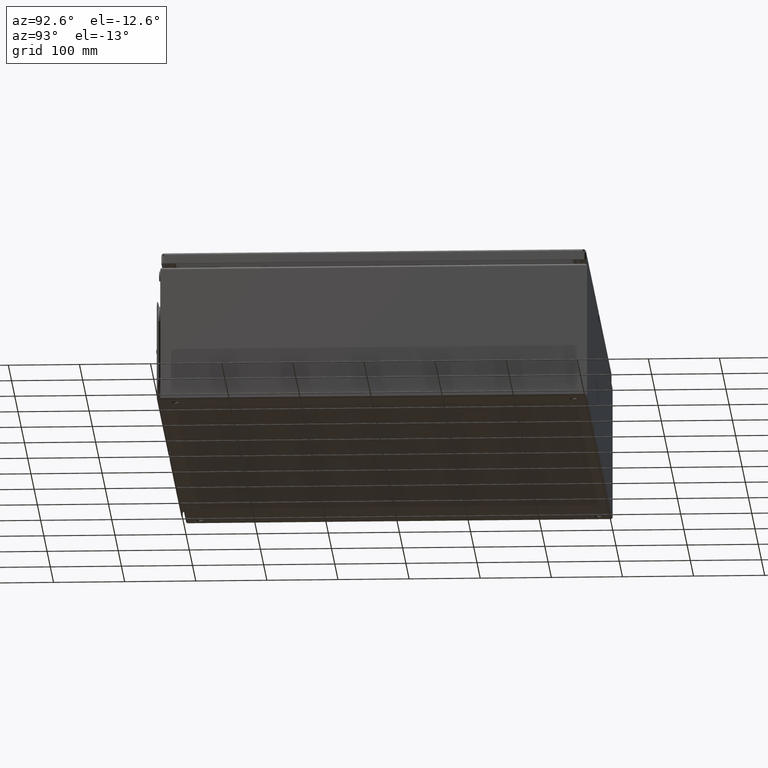
[diagram: clean part render]
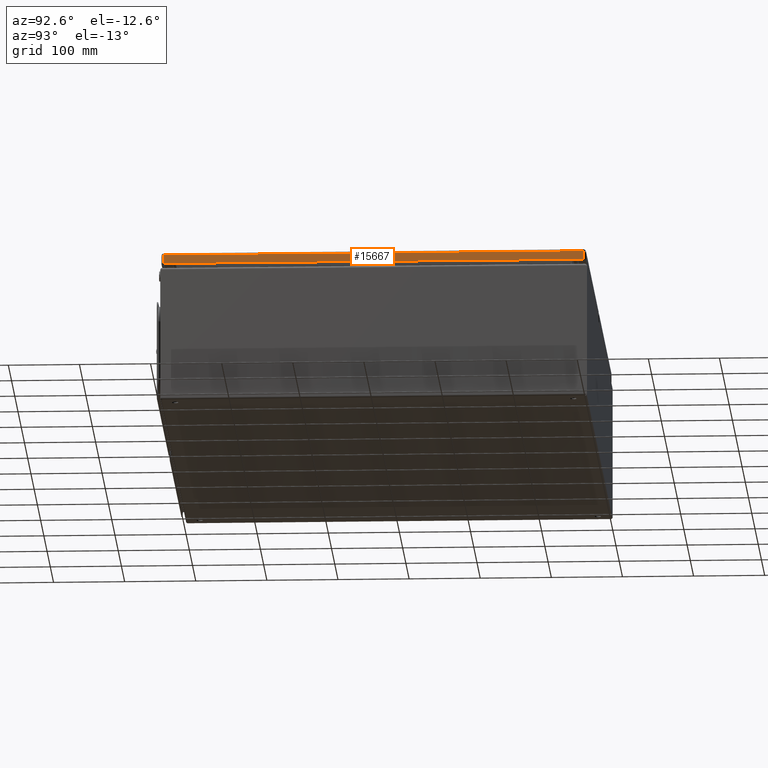
[diagram: same view with one face highlighted and labeled with its STEP entity id]
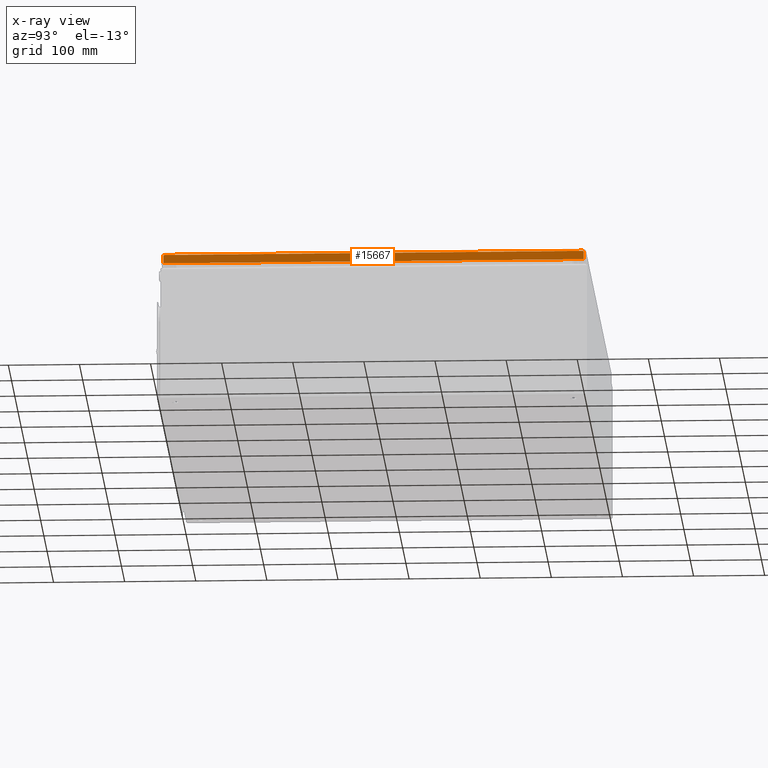
[diagram: x-ray of the same camera — body ghosted, the highlighted face saturated]
A machine part, auxiliary view. The second image highlights one B-rep face of the part: STEP entity #15667.
The next image is the same camera in x-ray: the body ghosted, the highlighted face saturated — about 0% of this face is hidden behind the body in this view.
In plain terms, the highlighted planar face has unit normal (-1, -0, 0).
Its self-contained STEP definition (entity closure, byte-faithful):
#368 = PLANE ( 'NONE',  #16981 ) ;
#8755 = EDGE_CURVE ( 'NONE', #33343, #32523, #17990, .T. ) ;
#8757 = EDGE_CURVE ( 'NONE', #33148, #32356, #18422, .T. ) ;
#9423 = EDGE_CURVE ( 'NONE', #32523, #32383, #46011, .T. ) ;
#9970 = EDGE_CURVE ( 'NONE', #33146, #33148, #45289, .T. ) ;
#10152 = EDGE_CURVE ( 'NONE', #32356, #32383, #46277, .T. ) ;
#12628 = CARTESIAN_POINT ( 'NONE',  ( -199.2499999999999700, 295.4999999999998900, 14.99999999999976400 ) ) ;
#12634 = DIRECTION ( 'NONE',  ( -3.491481338843133400E-015, -2.627746803846524500E-016, -1.000000000000000000 ) ) ;
#15248 = EDGE_CURVE ( 'NONE', #33146, #33343, #38518, .T. ) ;
#15667 = ADVANCED_FACE ( 'NONE', ( #38705 ), #368, .F. ) ;
#16870 = AXIS2_PLACEMENT_3D ( 'NONE', #20970, #21038, #20866 ) ;
#16981 = AXIS2_PLACEMENT_3D ( 'NONE', #59381, #60040, #59146 ) ;
#17079 = AXIS2_PLACEMENT_3D ( 'NONE', #31149, #30996, #30330 ) ;
#17990 = LINE ( 'NONE', #20798, #18522 ) ;
#18422 = CIRCLE ( 'NONE', #16870, 2.999999999999994700 ) ;
#18522 = VECTOR ( 'NONE', #21233, 1000.000000000000000 ) ;
#20798 = CARTESIAN_POINT ( 'NONE',  ( -199.2499999999999700, -295.5000000000001700, 14.99999999999993100 ) ) ;
#20866 = DIRECTION ( 'NONE',  ( 0.0000000000000000000, 0.0000000000000000000, -1.000000000000000000 ) ) ;
#20970 = CARTESIAN_POINT ( 'NONE',  ( -199.2500000000000300, 297.0000000000000000, 1.500000000000001300 ) ) ;
#21038 = DIRECTION ( 'NONE',  ( 1.000000000000000000, 0.0000000000000000000, -3.491481338843133400E-015 ) ) ;
#21233 = DIRECTION ( 'NONE',  ( -3.491481338843133400E-015, 2.627746803846524500E-016, -1.000000000000000000 ) ) ;
#30330 = DIRECTION ( 'NONE',  ( 0.0000000000000000000, 0.0000000000000000000, -1.000000000000000000 ) ) ;
#30996 = DIRECTION ( 'NONE',  ( -1.000000000000000000, -0.0000000000000000000, 3.491481338843133400E-015 ) ) ;
#31149 = CARTESIAN_POINT ( 'NONE',  ( -199.2500000000000300, -297.0000000000000000, 1.500000000000001300 ) ) ;
#32356 = VERTEX_POINT ( 'NONE', #49608 ) ;
#32383 = VERTEX_POINT ( 'NONE', #51194 ) ;
#32523 = VERTEX_POINT ( 'NONE', #51000 ) ;
#33146 = VERTEX_POINT ( 'NONE', #50570 ) ;
#33148 = VERTEX_POINT ( 'NONE', #50246 ) ;
#33343 = VERTEX_POINT ( 'NONE', #47289 ) ;
#38151 = VECTOR ( 'NONE', #60187, 1000.000000000000000 ) ;
#38518 = LINE ( 'NONE', #59711, #38151 ) ;
#38705 = FACE_OUTER_BOUND ( 'NONE', #41410, .T. ) ;
#40892 = ORIENTED_EDGE ( 'NONE', *, *, #9423, .F. ) ;
#41402 = ORIENTED_EDGE ( 'NONE', *, *, #8755, .F. ) ;
#41410 = EDGE_LOOP ( 'NONE', ( #44062, #44643, #40892, #41402, #44257, #45278 ) ) ;
#44062 = ORIENTED_EDGE ( 'NONE', *, *, #8757, .T. ) ;
#44257 = ORIENTED_EDGE ( 'NONE', *, *, #15248, .F. ) ;
#44643 = ORIENTED_EDGE ( 'NONE', *, *, #10152, .T. ) ;
#45278 = ORIENTED_EDGE ( 'NONE', *, *, #9970, .T. ) ;
#45289 = LINE ( 'NONE', #12628, #45501 ) ;
#45501 = VECTOR ( 'NONE', #12634, 1000.000000000000000 ) ;
#46011 = CIRCLE ( 'NONE', #17079, 2.999999999999994700 ) ;
#46058 = VECTOR ( 'NONE', #52341, 1000.000000000000000 ) ;
#46277 = LINE ( 'NONE', #52324, #46058 ) ;
#47289 = CARTESIAN_POINT ( 'NONE',  ( -199.2499999999999700, -295.5000000000002800, 14.99999999999993100 ) ) ;
#49608 = CARTESIAN_POINT ( 'NONE',  ( -199.2500000000000300, 294.4019237886466800, 3.000000000000002700 ) ) ;
#50246 = CARTESIAN_POINT ( 'NONE',  ( -199.2500000000000300, 295.4999999999998900, 4.098076211353246700 ) ) ;
#50570 = CARTESIAN_POINT ( 'NONE',  ( -199.2499999999999700, 295.4999999999998300, 14.99999999999993100 ) ) ;
#51000 = CARTESIAN_POINT ( 'NONE',  ( -199.2500000000000300, -295.5000000000001700, 4.098076211353412800 ) ) ;
#51194 = CARTESIAN_POINT ( 'NONE',  ( -199.2500000000000300, -294.4019237886466800, 3.000000000000002700 ) ) ;
#52324 = CARTESIAN_POINT ( 'NONE',  ( -199.2500000000000300, -310.5000000000000000, 3.000000000000002700 ) ) ;
#52341 = DIRECTION ( 'NONE',  ( 0.0000000000000000000, -1.000000000000000000, -0.0000000000000000000 ) ) ;
#59146 = DIRECTION ( 'NONE',  ( -3.491481338843133400E-015, 0.0000000000000000000, -1.000000000000000000 ) ) ;
#59381 = CARTESIAN_POINT ( 'NONE',  ( -199.2499999999999700, -310.5000000000000000, 14.99999999999993100 ) ) ;
#59711 = CARTESIAN_POINT ( 'NONE',  ( -199.2499999999999700, 310.5000000000000000, 14.99999999999993100 ) ) ;
#60040 = DIRECTION ( 'NONE',  ( 1.000000000000000000, 0.0000000000000000000, -3.491481338843133400E-015 ) ) ;
#60187 = DIRECTION ( 'NONE',  ( 0.0000000000000000000, -1.000000000000000000, -0.0000000000000000000 ) ) ;